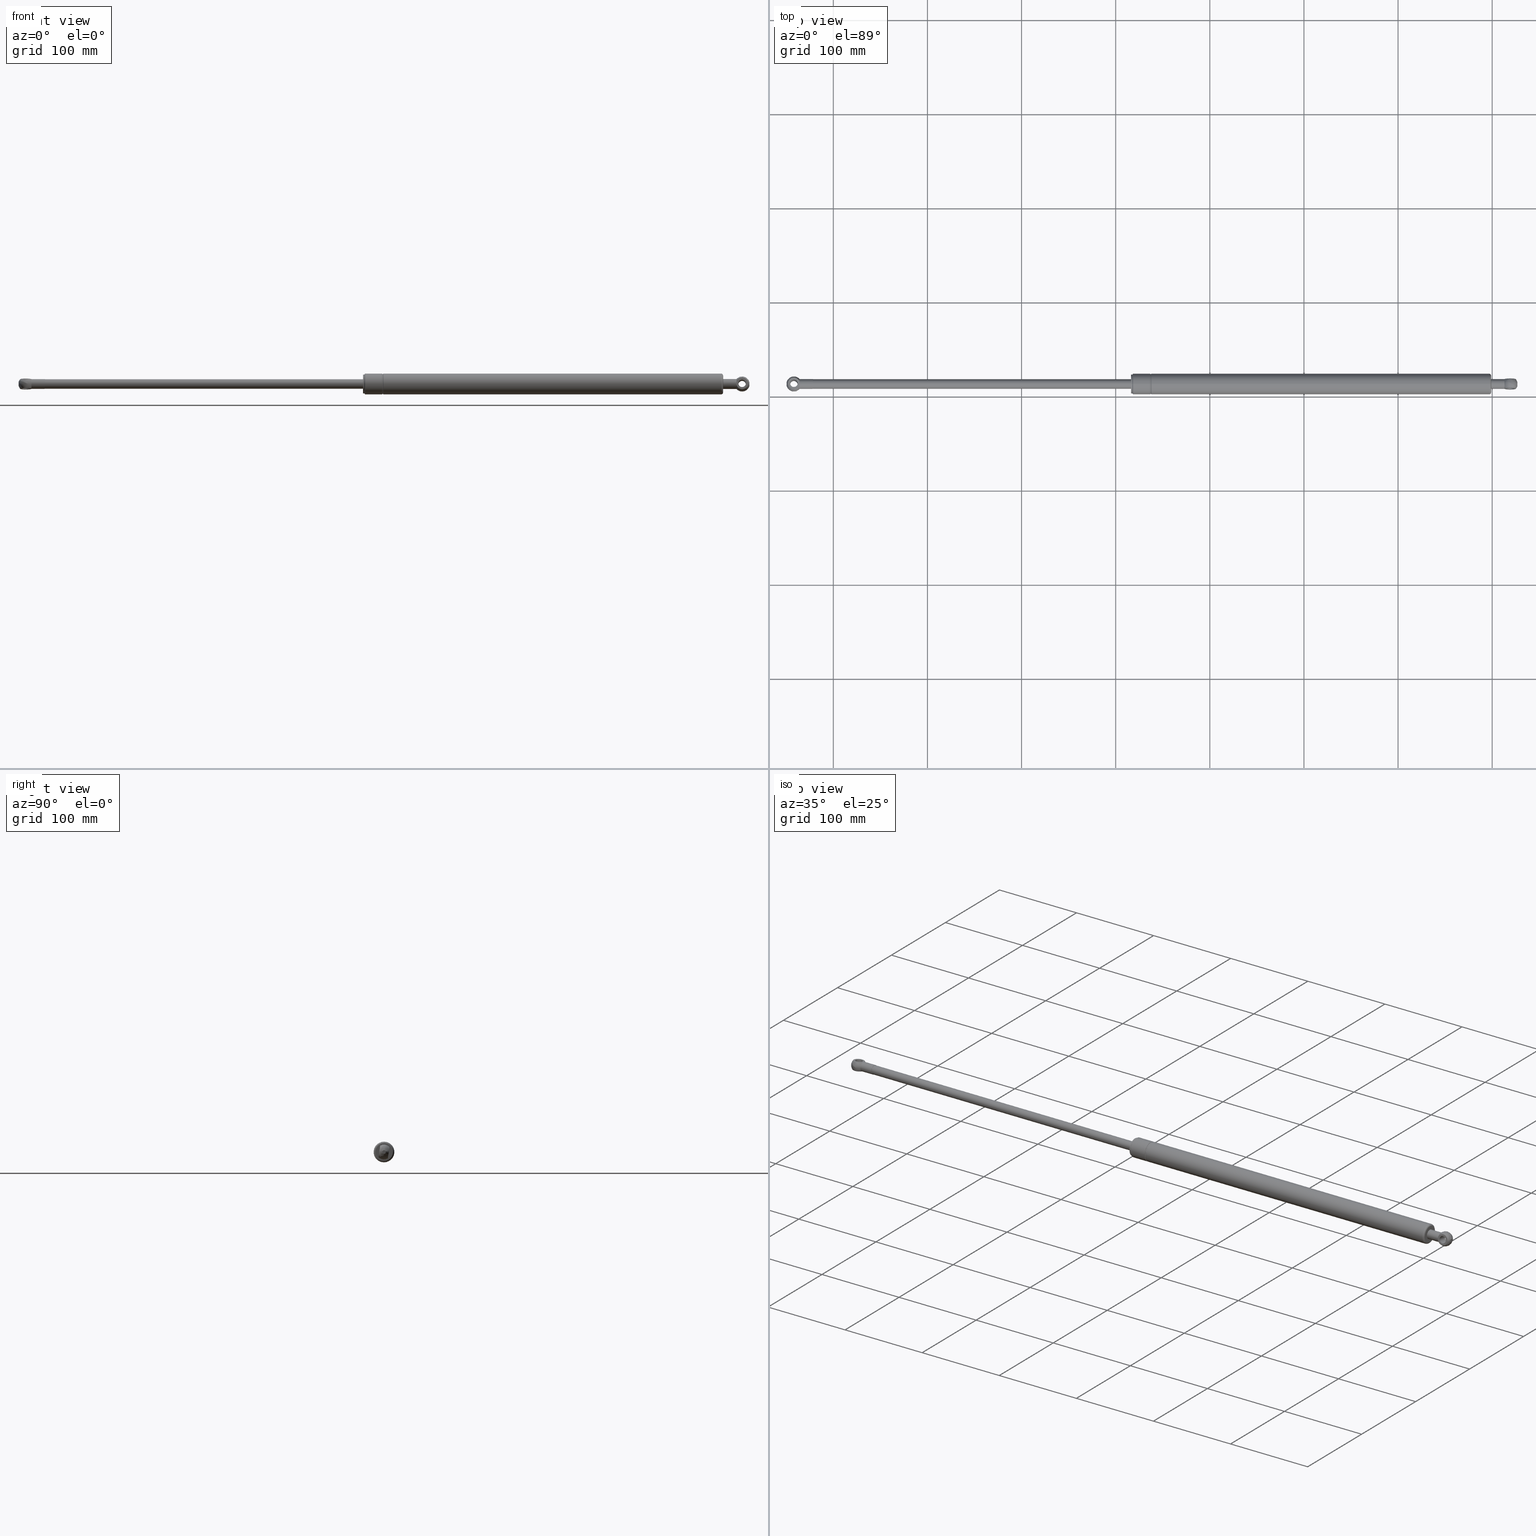
[diagram: canonical four-view strip — front | top / right | iso, engineering-drawing reading convention]
A machine part, canonical four-view strip (front | top / right | iso — engineering-drawing reading convention). The complete STEP part file that produces these views, byte-faithful:
ISO-10303-21;
HEADER;
/* Generated by software containing ST-Developer
 * from STEP Tools, Inc. (www.steptools.com) 
 */

FILE_DESCRIPTION(
/* description */ (''),
/* implementation_level */ '2;1');

FILE_NAME(
/* name */ '\\\\SYNOLOGYNAS\\web\\db2\\SB-761-H\\\X2\B3C4BA74\X0\\\DR_
SB-761-H.stp',
/* time_stamp */ '2023-11-29T15:38:38+09:00',
/* author */ ('user'),
/* organization */ (''),
/* preprocessor_version */ 'ST-DEVELOPER v15.6',
/* originating_system */ 'Autodesk Inventor 2015',
/* authorisation */ '');

FILE_SCHEMA (('AUTOMOTIVE_DESIGN { 1 0 10303 214 3 1 1 }'));
ENDSEC;

DATA;
#10=MECHANICAL_DESIGN_GEOMETRIC_PRESENTATION_REPRESENTATION('',(#42,#43,
#44,#46,#45,#48,#47),#815);
#11=ITEM_DEFINED_TRANSFORMATION($,$,#435,#511);
#12=ITEM_DEFINED_TRANSFORMATION($,$,#459,#512);
#13=ITEM_DEFINED_TRANSFORMATION($,$,#485,#513);
#14=ITEM_DEFINED_TRANSFORMATION($,$,#435,#514);
#15=ITEM_DEFINED_TRANSFORMATION($,$,#497,#515);
#16=(
REPRESENTATION_RELATIONSHIP($,$,#837,#841)
REPRESENTATION_RELATIONSHIP_WITH_TRANSFORMATION(#11)
SHAPE_REPRESENTATION_RELATIONSHIP()
);
#17=(
REPRESENTATION_RELATIONSHIP($,$,#838,#841)
REPRESENTATION_RELATIONSHIP_WITH_TRANSFORMATION(#12)
SHAPE_REPRESENTATION_RELATIONSHIP()
);
#18=(
REPRESENTATION_RELATIONSHIP($,$,#839,#841)
REPRESENTATION_RELATIONSHIP_WITH_TRANSFORMATION(#13)
SHAPE_REPRESENTATION_RELATIONSHIP()
);
#19=(
REPRESENTATION_RELATIONSHIP($,$,#837,#841)
REPRESENTATION_RELATIONSHIP_WITH_TRANSFORMATION(#14)
SHAPE_REPRESENTATION_RELATIONSHIP()
);
#20=(
REPRESENTATION_RELATIONSHIP($,$,#840,#841)
REPRESENTATION_RELATIONSHIP_WITH_TRANSFORMATION(#15)
SHAPE_REPRESENTATION_RELATIONSHIP()
);
#21=CONTEXT_DEPENDENT_SHAPE_REPRESENTATION(#16,#832);
#22=CONTEXT_DEPENDENT_SHAPE_REPRESENTATION(#17,#833);
#23=CONTEXT_DEPENDENT_SHAPE_REPRESENTATION(#18,#834);
#24=CONTEXT_DEPENDENT_SHAPE_REPRESENTATION(#19,#835);
#25=CONTEXT_DEPENDENT_SHAPE_REPRESENTATION(#20,#836);
#26=NEXT_ASSEMBLY_USAGE_OCCURRENCE('DR_SB-761-H HOLE:1',$,$,#847,#843,$);
#27=NEXT_ASSEMBLY_USAGE_OCCURRENCE('DR_SB-761-BASE:1',$,$,#847,#844,$);
#28=NEXT_ASSEMBLY_USAGE_OCCURRENCE('DR_SB-761-SUPPORT:1',$,$,#847,#845,
$);
#29=NEXT_ASSEMBLY_USAGE_OCCURRENCE('DR_SB-761-H HOLE:2',$,$,#847,#843,$);
#30=NEXT_ASSEMBLY_USAGE_OCCURRENCE('DR_SB-761-RING:1',$,$,#847,#846,$);
#31=TOROIDAL_SURFACE('',#466,11.,0.5);
#32=TOROIDAL_SURFACE('',#469,11.,1.);
#33=TOROIDAL_SURFACE('',#474,9.00000000000001,2.);
#34=SHAPE_REPRESENTATION_RELATIONSHIP('SRR','None',#837,#38);
#35=SHAPE_REPRESENTATION_RELATIONSHIP('SRR','None',#838,#39);
#36=SHAPE_REPRESENTATION_RELATIONSHIP('SRR','None',#839,#40);
#37=SHAPE_REPRESENTATION_RELATIONSHIP('SRR','None',#840,#41);
#38=ADVANCED_BREP_SHAPE_REPRESENTATION($,(#49),#810);
#39=ADVANCED_BREP_SHAPE_REPRESENTATION($,(#50),#811);
#40=ADVANCED_BREP_SHAPE_REPRESENTATION($,(#51),#812);
#41=ADVANCED_BREP_SHAPE_REPRESENTATION($,(#52),#813);
#42=STYLED_ITEM('',(#866),#49);
#43=STYLED_ITEM('',(#867),#50);
#44=STYLED_ITEM('',(#868),#422);
#45=STYLED_ITEM('',(#868),#51);
#46=STYLED_ITEM('',(#870),#426);
#47=STYLED_ITEM('',(#867),#427);
#48=STYLED_ITEM('',(#869),#52);
#49=MANIFOLD_SOLID_BREP('\X2\C194B9ACB4DC\X0\1',#431);
#50=MANIFOLD_SOLID_BREP('\X2\C194B9ACB4DC\X0\1',#432);
#51=MANIFOLD_SOLID_BREP('\X2\C194B9ACB4DC\X0\1',#433);
#52=MANIFOLD_SOLID_BREP('\X2\C194B9ACB4DC\X0\1',#434);
#53=SPHERICAL_SURFACE('',#454,8.);
#54=B_SPLINE_CURVE_WITH_KNOTS('',3,(#691,#692,#693,#694,#695,#696),
 .UNSPECIFIED.,.F.,.F.,(4,2,4),(2.41667495412591,2.57738882372164,2.73810269331737),
 .UNSPECIFIED.);
#55=B_SPLINE_CURVE_WITH_KNOTS('',3,(#701,#702,#703,#704,#705,#706),
 .UNSPECIFIED.,.F.,.F.,(4,2,4),(0.698415738311486,0.859129607907215,1.01984347750294),
 .UNSPECIFIED.);
#56=PLANE('',#440);
#57=PLANE('',#453);
#58=PLANE('',#457);
#59=PLANE('',#458);
#60=PLANE('',#465);
#61=PLANE('',#477);
#62=PLANE('',#482);
#63=PLANE('',#484);
#64=PLANE('',#491);
#65=PLANE('',#492);
#66=PLANE('',#496);
#67=PLANE('',#501);
#68=PLANE('',#505);
#69=PLANE('',#509);
#70=FACE_BOUND('',#151,.T.);
#71=FACE_BOUND('',#156,.T.);
#72=FACE_BOUND('',#158,.T.);
#73=FACE_BOUND('',#160,.T.);
#74=FACE_BOUND('',#161,.T.);
#75=FACE_BOUND('',#162,.T.);
#76=FACE_BOUND('',#164,.T.);
#77=FACE_BOUND('',#166,.T.);
#78=FACE_BOUND('',#168,.T.);
#79=FACE_BOUND('',#170,.T.);
#80=FACE_BOUND('',#173,.T.);
#81=FACE_BOUND('',#175,.T.);
#82=FACE_BOUND('',#177,.T.);
#83=FACE_BOUND('',#179,.T.);
#84=FACE_BOUND('',#181,.T.);
#85=FACE_BOUND('',#183,.T.);
#86=FACE_BOUND('',#185,.T.);
#87=FACE_BOUND('',#188,.T.);
#88=FACE_BOUND('',#190,.T.);
#89=FACE_BOUND('',#192,.T.);
#90=FACE_BOUND('',#194,.T.);
#91=FACE_BOUND('',#198,.T.);
#92=FACE_BOUND('',#200,.T.);
#93=FACE_BOUND('',#202,.T.);
#94=FACE_BOUND('',#204,.T.);
#95=FACE_BOUND('',#206,.T.);
#96=FACE_BOUND('',#208,.T.);
#97=FACE_BOUND('',#210,.T.);
#98=FACE_BOUND('',#212,.T.);
#99=CYLINDRICAL_SURFACE('',#438,3.567);
#100=CYLINDRICAL_SURFACE('',#442,6.2449979983984);
#101=CYLINDRICAL_SURFACE('',#444,6.2449979983984);
#102=CYLINDRICAL_SURFACE('',#446,5.25);
#103=CYLINDRICAL_SURFACE('',#450,4.);
#104=CYLINDRICAL_SURFACE('',#463,4.);
#105=CYLINDRICAL_SURFACE('',#472,10.);
#106=CYLINDRICAL_SURFACE('',#478,11.);
#107=CYLINDRICAL_SURFACE('',#479,9.);
#108=CYLINDRICAL_SURFACE('',#483,11.);
#109=CYLINDRICAL_SURFACE('',#489,4.);
#110=CYLINDRICAL_SURFACE('',#494,5.00000000000002);
#111=CYLINDRICAL_SURFACE('',#498,9.);
#112=CYLINDRICAL_SURFACE('',#503,6.5);
#113=CYLINDRICAL_SURFACE('',#507,5.);
#114=FACE_OUTER_BOUND('',#149,.T.);
#115=FACE_OUTER_BOUND('',#150,.T.);
#116=FACE_OUTER_BOUND('',#152,.T.);
#117=FACE_OUTER_BOUND('',#153,.T.);
#118=FACE_OUTER_BOUND('',#154,.T.);
#119=FACE_OUTER_BOUND('',#155,.T.);
#120=FACE_OUTER_BOUND('',#157,.T.);
#121=FACE_OUTER_BOUND('',#159,.T.);
#122=FACE_OUTER_BOUND('',#163,.T.);
#123=FACE_OUTER_BOUND('',#165,.T.);
#124=FACE_OUTER_BOUND('',#167,.T.);
#125=FACE_OUTER_BOUND('',#169,.T.);
#126=FACE_OUTER_BOUND('',#171,.T.);
#127=FACE_OUTER_BOUND('',#172,.T.);
#128=FACE_OUTER_BOUND('',#174,.T.);
#129=FACE_OUTER_BOUND('',#176,.T.);
#130=FACE_OUTER_BOUND('',#178,.T.);
#131=FACE_OUTER_BOUND('',#180,.T.);
#132=FACE_OUTER_BOUND('',#182,.T.);
#133=FACE_OUTER_BOUND('',#184,.T.);
#134=FACE_OUTER_BOUND('',#186,.T.);
#135=FACE_OUTER_BOUND('',#187,.T.);
#136=FACE_OUTER_BOUND('',#189,.T.);
#137=FACE_OUTER_BOUND('',#191,.T.);
#138=FACE_OUTER_BOUND('',#193,.T.);
#139=FACE_OUTER_BOUND('',#195,.T.);
#140=FACE_OUTER_BOUND('',#196,.T.);
#141=FACE_OUTER_BOUND('',#197,.T.);
#142=FACE_OUTER_BOUND('',#199,.T.);
#143=FACE_OUTER_BOUND('',#201,.T.);
#144=FACE_OUTER_BOUND('',#203,.T.);
#145=FACE_OUTER_BOUND('',#205,.T.);
#146=FACE_OUTER_BOUND('',#207,.T.);
#147=FACE_OUTER_BOUND('',#209,.T.);
#148=FACE_OUTER_BOUND('',#211,.T.);
#149=EDGE_LOOP('',(#318));
#150=EDGE_LOOP('',(#319));
#151=EDGE_LOOP('',(#320));
#152=EDGE_LOOP('',(#321));
#153=EDGE_LOOP('',(#322,#323));
#154=EDGE_LOOP('',(#324,#325));
#155=EDGE_LOOP('',(#326,#327,#328,#329));
#156=EDGE_LOOP('',(#330));
#157=EDGE_LOOP('',(#331));
#158=EDGE_LOOP('',(#332));
#159=EDGE_LOOP('',(#333));
#160=EDGE_LOOP('',(#334));
#161=EDGE_LOOP('',(#335));
#162=EDGE_LOOP('',(#336,#337,#338,#339));
#163=EDGE_LOOP('',(#340,#341));
#164=EDGE_LOOP('',(#342));
#165=EDGE_LOOP('',(#343,#344));
#166=EDGE_LOOP('',(#345));
#167=EDGE_LOOP('',(#346));
#168=EDGE_LOOP('',(#347));
#169=EDGE_LOOP('',(#348));
#170=EDGE_LOOP('',(#349));
#171=EDGE_LOOP('',(#350));
#172=EDGE_LOOP('',(#351));
#173=EDGE_LOOP('',(#352));
#174=EDGE_LOOP('',(#353));
#175=EDGE_LOOP('',(#354));
#176=EDGE_LOOP('',(#355));
#177=EDGE_LOOP('',(#356));
#178=EDGE_LOOP('',(#357));
#179=EDGE_LOOP('',(#358));
#180=EDGE_LOOP('',(#359));
#181=EDGE_LOOP('',(#360));
#182=EDGE_LOOP('',(#361));
#183=EDGE_LOOP('',(#362));
#184=EDGE_LOOP('',(#363));
#185=EDGE_LOOP('',(#364));
#186=EDGE_LOOP('',(#365));
#187=EDGE_LOOP('',(#366));
#188=EDGE_LOOP('',(#367));
#189=EDGE_LOOP('',(#368));
#190=EDGE_LOOP('',(#369));
#191=EDGE_LOOP('',(#370));
#192=EDGE_LOOP('',(#371));
#193=EDGE_LOOP('',(#372));
#194=EDGE_LOOP('',(#373));
#195=EDGE_LOOP('',(#374));
#196=EDGE_LOOP('',(#375));
#197=EDGE_LOOP('',(#376));
#198=EDGE_LOOP('',(#377));
#199=EDGE_LOOP('',(#378));
#200=EDGE_LOOP('',(#379));
#201=EDGE_LOOP('',(#380));
#202=EDGE_LOOP('',(#381));
#203=EDGE_LOOP('',(#382));
#204=EDGE_LOOP('',(#383));
#205=EDGE_LOOP('',(#384));
#206=EDGE_LOOP('',(#385));
#207=EDGE_LOOP('',(#386));
#208=EDGE_LOOP('',(#387));
#209=EDGE_LOOP('',(#388));
#210=EDGE_LOOP('',(#389));
#211=EDGE_LOOP('',(#390));
#212=EDGE_LOOP('',(#391));
#213=CIRCLE('',#437,3.567);
#214=CIRCLE('',#439,3.567);
#215=CIRCLE('',#441,1.98431348329845);
#216=CIRCLE('',#443,6.2449979983984);
#217=CIRCLE('',#445,6.2449979983984);
#218=CIRCLE('',#447,5.25);
#219=CIRCLE('',#448,5.25);
#220=CIRCLE('',#449,5.25);
#221=CIRCLE('',#451,4.);
#222=CIRCLE('',#452,4.);
#223=CIRCLE('',#455,6.2449979983984);
#224=CIRCLE('',#456,6.2449979983984);
#225=CIRCLE('',#461,4.);
#226=CIRCLE('',#462,3.);
#227=CIRCLE('',#464,4.);
#228=CIRCLE('',#467,11.);
#229=CIRCLE('',#468,11.);
#230=CIRCLE('',#470,11.);
#231=CIRCLE('',#471,10.);
#232=CIRCLE('',#473,10.);
#233=CIRCLE('',#475,9.00000000000001);
#234=CIRCLE('',#476,11.);
#235=CIRCLE('',#480,9.);
#236=CIRCLE('',#481,9.);
#237=CIRCLE('',#487,4.);
#238=CIRCLE('',#488,3.);
#239=CIRCLE('',#490,4.);
#240=CIRCLE('',#493,5.);
#241=CIRCLE('',#495,5.00000000000003);
#242=CIRCLE('',#499,9.);
#243=CIRCLE('',#500,9.);
#244=CIRCLE('',#502,6.5);
#245=CIRCLE('',#504,6.5);
#246=CIRCLE('',#506,5.);
#247=CIRCLE('',#508,5.);
#248=VERTEX_POINT('',#680);
#249=VERTEX_POINT('',#683);
#250=VERTEX_POINT('',#686);
#251=VERTEX_POINT('',#689);
#252=VERTEX_POINT('',#690);
#253=VERTEX_POINT('',#699);
#254=VERTEX_POINT('',#700);
#255=VERTEX_POINT('',#711);
#256=VERTEX_POINT('',#714);
#257=VERTEX_POINT('',#716);
#258=VERTEX_POINT('',#726);
#259=VERTEX_POINT('',#728);
#260=VERTEX_POINT('',#731);
#261=VERTEX_POINT('',#735);
#262=VERTEX_POINT('',#737);
#263=VERTEX_POINT('',#740);
#264=VERTEX_POINT('',#742);
#265=VERTEX_POINT('',#745);
#266=VERTEX_POINT('',#748);
#267=VERTEX_POINT('',#750);
#268=VERTEX_POINT('',#755);
#269=VERTEX_POINT('',#757);
#270=VERTEX_POINT('',#764);
#271=VERTEX_POINT('',#766);
#272=VERTEX_POINT('',#769);
#273=VERTEX_POINT('',#773);
#274=VERTEX_POINT('',#776);
#275=VERTEX_POINT('',#781);
#276=VERTEX_POINT('',#783);
#277=VERTEX_POINT('',#786);
#278=VERTEX_POINT('',#789);
#279=VERTEX_POINT('',#792);
#280=VERTEX_POINT('',#795);
#281=EDGE_CURVE('',#248,#248,#213,.T.);
#282=EDGE_CURVE('',#249,#249,#214,.T.);
#283=EDGE_CURVE('',#250,#250,#215,.T.);
#284=EDGE_CURVE('',#251,#252,#54,.T.);
#285=EDGE_CURVE('',#251,#252,#216,.T.);
#286=EDGE_CURVE('',#253,#254,#55,.T.);
#287=EDGE_CURVE('',#253,#254,#217,.T.);
#288=EDGE_CURVE('',#253,#252,#218,.T.);
#289=EDGE_CURVE('',#251,#254,#219,.T.);
#290=EDGE_CURVE('',#255,#255,#220,.T.);
#291=EDGE_CURVE('',#256,#256,#221,.T.);
#292=EDGE_CURVE('',#257,#257,#222,.T.);
#293=EDGE_CURVE('',#252,#251,#223,.T.);
#294=EDGE_CURVE('',#254,#253,#224,.T.);
#295=EDGE_CURVE('',#258,#258,#225,.T.);
#296=EDGE_CURVE('',#259,#259,#226,.T.);
#297=EDGE_CURVE('',#260,#260,#227,.T.);
#298=EDGE_CURVE('',#261,#261,#228,.T.);
#299=EDGE_CURVE('',#262,#262,#229,.T.);
#300=EDGE_CURVE('',#263,#263,#230,.T.);
#301=EDGE_CURVE('',#264,#264,#231,.T.);
#302=EDGE_CURVE('',#265,#265,#232,.T.);
#303=EDGE_CURVE('',#266,#266,#233,.T.);
#304=EDGE_CURVE('',#267,#267,#234,.T.);
#305=EDGE_CURVE('',#268,#268,#235,.T.);
#306=EDGE_CURVE('',#269,#269,#236,.T.);
#307=EDGE_CURVE('',#270,#270,#237,.T.);
#308=EDGE_CURVE('',#271,#271,#238,.T.);
#309=EDGE_CURVE('',#272,#272,#239,.T.);
#310=EDGE_CURVE('',#273,#273,#240,.T.);
#311=EDGE_CURVE('',#274,#274,#241,.T.);
#312=EDGE_CURVE('',#275,#275,#242,.T.);
#313=EDGE_CURVE('',#276,#276,#243,.T.);
#314=EDGE_CURVE('',#277,#277,#244,.T.);
#315=EDGE_CURVE('',#278,#278,#245,.T.);
#316=EDGE_CURVE('',#279,#279,#246,.T.);
#317=EDGE_CURVE('',#280,#280,#247,.T.);
#318=ORIENTED_EDGE('',*,*,#281,.T.);
#319=ORIENTED_EDGE('',*,*,#282,.F.);
#320=ORIENTED_EDGE('',*,*,#281,.F.);
#321=ORIENTED_EDGE('',*,*,#283,.F.);
#322=ORIENTED_EDGE('',*,*,#284,.F.);
#323=ORIENTED_EDGE('',*,*,#285,.T.);
#324=ORIENTED_EDGE('',*,*,#286,.F.);
#325=ORIENTED_EDGE('',*,*,#287,.T.);
#326=ORIENTED_EDGE('',*,*,#284,.T.);
#327=ORIENTED_EDGE('',*,*,#288,.F.);
#328=ORIENTED_EDGE('',*,*,#286,.T.);
#329=ORIENTED_EDGE('',*,*,#289,.F.);
#330=ORIENTED_EDGE('',*,*,#290,.F.);
#331=ORIENTED_EDGE('',*,*,#291,.F.);
#332=ORIENTED_EDGE('',*,*,#292,.F.);
#333=ORIENTED_EDGE('',*,*,#290,.T.);
#334=ORIENTED_EDGE('',*,*,#282,.T.);
#335=ORIENTED_EDGE('',*,*,#283,.T.);
#336=ORIENTED_EDGE('',*,*,#288,.T.);
#337=ORIENTED_EDGE('',*,*,#293,.T.);
#338=ORIENTED_EDGE('',*,*,#289,.T.);
#339=ORIENTED_EDGE('',*,*,#294,.T.);
#340=ORIENTED_EDGE('',*,*,#293,.F.);
#341=ORIENTED_EDGE('',*,*,#285,.F.);
#342=ORIENTED_EDGE('',*,*,#291,.T.);
#343=ORIENTED_EDGE('',*,*,#294,.F.);
#344=ORIENTED_EDGE('',*,*,#287,.F.);
#345=ORIENTED_EDGE('',*,*,#292,.T.);
#346=ORIENTED_EDGE('',*,*,#295,.T.);
#347=ORIENTED_EDGE('',*,*,#296,.T.);
#348=ORIENTED_EDGE('',*,*,#297,.F.);
#349=ORIENTED_EDGE('',*,*,#295,.F.);
#350=ORIENTED_EDGE('',*,*,#296,.F.);
#351=ORIENTED_EDGE('',*,*,#298,.T.);
#352=ORIENTED_EDGE('',*,*,#299,.F.);
#353=ORIENTED_EDGE('',*,*,#300,.T.);
#354=ORIENTED_EDGE('',*,*,#301,.T.);
#355=ORIENTED_EDGE('',*,*,#302,.F.);
#356=ORIENTED_EDGE('',*,*,#301,.F.);
#357=ORIENTED_EDGE('',*,*,#303,.T.);
#358=ORIENTED_EDGE('',*,*,#304,.T.);
#359=ORIENTED_EDGE('',*,*,#303,.F.);
#360=ORIENTED_EDGE('',*,*,#297,.T.);
#361=ORIENTED_EDGE('',*,*,#298,.F.);
#362=ORIENTED_EDGE('',*,*,#304,.F.);
#363=ORIENTED_EDGE('',*,*,#305,.F.);
#364=ORIENTED_EDGE('',*,*,#306,.F.);
#365=ORIENTED_EDGE('',*,*,#306,.T.);
#366=ORIENTED_EDGE('',*,*,#300,.F.);
#367=ORIENTED_EDGE('',*,*,#299,.T.);
#368=ORIENTED_EDGE('',*,*,#302,.T.);
#369=ORIENTED_EDGE('',*,*,#305,.T.);
#370=ORIENTED_EDGE('',*,*,#307,.T.);
#371=ORIENTED_EDGE('',*,*,#308,.T.);
#372=ORIENTED_EDGE('',*,*,#309,.F.);
#373=ORIENTED_EDGE('',*,*,#307,.F.);
#374=ORIENTED_EDGE('',*,*,#308,.F.);
#375=ORIENTED_EDGE('',*,*,#310,.F.);
#376=ORIENTED_EDGE('',*,*,#311,.F.);
#377=ORIENTED_EDGE('',*,*,#310,.T.);
#378=ORIENTED_EDGE('',*,*,#311,.T.);
#379=ORIENTED_EDGE('',*,*,#309,.T.);
#380=ORIENTED_EDGE('',*,*,#312,.F.);
#381=ORIENTED_EDGE('',*,*,#313,.T.);
#382=ORIENTED_EDGE('',*,*,#312,.T.);
#383=ORIENTED_EDGE('',*,*,#314,.F.);
#384=ORIENTED_EDGE('',*,*,#315,.F.);
#385=ORIENTED_EDGE('',*,*,#314,.T.);
#386=ORIENTED_EDGE('',*,*,#315,.T.);
#387=ORIENTED_EDGE('',*,*,#316,.F.);
#388=ORIENTED_EDGE('',*,*,#317,.F.);
#389=ORIENTED_EDGE('',*,*,#316,.T.);
#390=ORIENTED_EDGE('',*,*,#313,.F.);
#391=ORIENTED_EDGE('',*,*,#317,.T.);
#392=CONICAL_SURFACE('',#436,1.7835,59.);
#393=CONICAL_SURFACE('',#460,3.5,44.9999999999996);
#394=CONICAL_SURFACE('',#486,3.5,45.);
#395=ADVANCED_FACE('',(#114),#392,.F.);
#396=ADVANCED_FACE('',(#115,#70),#99,.F.);
#397=ADVANCED_FACE('',(#116),#56,.F.);
#398=ADVANCED_FACE('',(#117),#100,.F.);
#399=ADVANCED_FACE('',(#118),#101,.F.);
#400=ADVANCED_FACE('',(#119,#71),#102,.T.);
#401=ADVANCED_FACE('',(#120,#72),#103,.F.);
#402=ADVANCED_FACE('',(#121,#73),#57,.F.);
#403=ADVANCED_FACE('',(#74,#75),#53,.T.);
#404=ADVANCED_FACE('',(#122,#76),#58,.F.);
#405=ADVANCED_FACE('',(#123,#77),#59,.F.);
#406=ADVANCED_FACE('',(#124,#78),#393,.T.);
#407=ADVANCED_FACE('',(#125,#79),#104,.T.);
#408=ADVANCED_FACE('',(#126),#60,.T.);
#409=ADVANCED_FACE('',(#127,#80),#31,.F.);
#410=ADVANCED_FACE('',(#128,#81),#32,.F.);
#411=ADVANCED_FACE('',(#129,#82),#105,.T.);
#412=ADVANCED_FACE('',(#130,#83),#33,.T.);
#413=ADVANCED_FACE('',(#131,#84),#61,.T.);
#414=ADVANCED_FACE('',(#132,#85),#106,.T.);
#415=ADVANCED_FACE('',(#133,#86),#107,.F.);
#416=ADVANCED_FACE('',(#134),#62,.T.);
#417=ADVANCED_FACE('',(#135,#87),#108,.T.);
#418=ADVANCED_FACE('',(#136,#88),#63,.T.);
#419=ADVANCED_FACE('',(#137,#89),#394,.T.);
#420=ADVANCED_FACE('',(#138,#90),#109,.T.);
#421=ADVANCED_FACE('',(#139),#64,.F.);
#422=ADVANCED_FACE('',(#140),#65,.T.);
#423=ADVANCED_FACE('',(#141,#91),#110,.T.);
#424=ADVANCED_FACE('',(#142,#92),#66,.T.);
#425=ADVANCED_FACE('',(#143,#93),#111,.T.);
#426=ADVANCED_FACE('',(#144,#94),#67,.T.);
#427=ADVANCED_FACE('',(#145,#95),#112,.F.);
#428=ADVANCED_FACE('',(#146,#96),#68,.T.);
#429=ADVANCED_FACE('',(#147,#97),#113,.F.);
#430=ADVANCED_FACE('',(#148,#98),#69,.T.);
#431=CLOSED_SHELL('',(#395,#396,#397,#398,#399,#400,#401,#402,#403,#404,
#405));
#432=CLOSED_SHELL('',(#406,#407,#408,#409,#410,#411,#412,#413,#414,#415,
#416,#417,#418));
#433=CLOSED_SHELL('',(#419,#420,#421,#422,#423,#424));
#434=CLOSED_SHELL('',(#425,#426,#427,#428,#429,#430));
#435=AXIS2_PLACEMENT_3D('placement',#678,#516,#517);
#436=AXIS2_PLACEMENT_3D('',#679,#518,#519);
#437=AXIS2_PLACEMENT_3D('',#681,#520,#521);
#438=AXIS2_PLACEMENT_3D('',#682,#522,#523);
#439=AXIS2_PLACEMENT_3D('',#684,#524,#525);
#440=AXIS2_PLACEMENT_3D('',#685,#526,#527);
#441=AXIS2_PLACEMENT_3D('',#687,#528,#529);
#442=AXIS2_PLACEMENT_3D('',#688,#530,#531);
#443=AXIS2_PLACEMENT_3D('',#697,#532,#533);
#444=AXIS2_PLACEMENT_3D('',#698,#534,#535);
#445=AXIS2_PLACEMENT_3D('',#707,#536,#537);
#446=AXIS2_PLACEMENT_3D('',#708,#538,#539);
#447=AXIS2_PLACEMENT_3D('',#709,#540,#541);
#448=AXIS2_PLACEMENT_3D('',#710,#542,#543);
#449=AXIS2_PLACEMENT_3D('',#712,#544,#545);
#450=AXIS2_PLACEMENT_3D('',#713,#546,#547);
#451=AXIS2_PLACEMENT_3D('',#715,#548,#549);
#452=AXIS2_PLACEMENT_3D('',#717,#550,#551);
#453=AXIS2_PLACEMENT_3D('',#718,#552,#553);
#454=AXIS2_PLACEMENT_3D('',#719,#554,#555);
#455=AXIS2_PLACEMENT_3D('',#720,#556,#557);
#456=AXIS2_PLACEMENT_3D('',#721,#558,#559);
#457=AXIS2_PLACEMENT_3D('',#722,#560,#561);
#458=AXIS2_PLACEMENT_3D('',#723,#562,#563);
#459=AXIS2_PLACEMENT_3D('placement',#724,#564,#565);
#460=AXIS2_PLACEMENT_3D('',#725,#566,#567);
#461=AXIS2_PLACEMENT_3D('',#727,#568,#569);
#462=AXIS2_PLACEMENT_3D('',#729,#570,#571);
#463=AXIS2_PLACEMENT_3D('',#730,#572,#573);
#464=AXIS2_PLACEMENT_3D('',#732,#574,#575);
#465=AXIS2_PLACEMENT_3D('',#733,#576,#577);
#466=AXIS2_PLACEMENT_3D('',#734,#578,#579);
#467=AXIS2_PLACEMENT_3D('',#736,#580,#581);
#468=AXIS2_PLACEMENT_3D('',#738,#582,#583);
#469=AXIS2_PLACEMENT_3D('',#739,#584,#585);
#470=AXIS2_PLACEMENT_3D('',#741,#586,#587);
#471=AXIS2_PLACEMENT_3D('',#743,#588,#589);
#472=AXIS2_PLACEMENT_3D('',#744,#590,#591);
#473=AXIS2_PLACEMENT_3D('',#746,#592,#593);
#474=AXIS2_PLACEMENT_3D('',#747,#594,#595);
#475=AXIS2_PLACEMENT_3D('',#749,#596,#597);
#476=AXIS2_PLACEMENT_3D('',#751,#598,#599);
#477=AXIS2_PLACEMENT_3D('',#752,#600,#601);
#478=AXIS2_PLACEMENT_3D('',#753,#602,#603);
#479=AXIS2_PLACEMENT_3D('',#754,#604,#605);
#480=AXIS2_PLACEMENT_3D('',#756,#606,#607);
#481=AXIS2_PLACEMENT_3D('',#758,#608,#609);
#482=AXIS2_PLACEMENT_3D('',#759,#610,#611);
#483=AXIS2_PLACEMENT_3D('',#760,#612,#613);
#484=AXIS2_PLACEMENT_3D('',#761,#614,#615);
#485=AXIS2_PLACEMENT_3D('placement',#762,#616,#617);
#486=AXIS2_PLACEMENT_3D('',#763,#618,#619);
#487=AXIS2_PLACEMENT_3D('',#765,#620,#621);
#488=AXIS2_PLACEMENT_3D('',#767,#622,#623);
#489=AXIS2_PLACEMENT_3D('',#768,#624,#625);
#490=AXIS2_PLACEMENT_3D('',#770,#626,#627);
#491=AXIS2_PLACEMENT_3D('',#771,#628,#629);
#492=AXIS2_PLACEMENT_3D('',#772,#630,#631);
#493=AXIS2_PLACEMENT_3D('',#774,#632,#633);
#494=AXIS2_PLACEMENT_3D('',#775,#634,#635);
#495=AXIS2_PLACEMENT_3D('',#777,#636,#637);
#496=AXIS2_PLACEMENT_3D('',#778,#638,#639);
#497=AXIS2_PLACEMENT_3D('placement',#779,#640,#641);
#498=AXIS2_PLACEMENT_3D('',#780,#642,#643);
#499=AXIS2_PLACEMENT_3D('',#782,#644,#645);
#500=AXIS2_PLACEMENT_3D('',#784,#646,#647);
#501=AXIS2_PLACEMENT_3D('',#785,#648,#649);
#502=AXIS2_PLACEMENT_3D('',#787,#650,#651);
#503=AXIS2_PLACEMENT_3D('',#788,#652,#653);
#504=AXIS2_PLACEMENT_3D('',#790,#654,#655);
#505=AXIS2_PLACEMENT_3D('',#791,#656,#657);
#506=AXIS2_PLACEMENT_3D('',#793,#658,#659);
#507=AXIS2_PLACEMENT_3D('',#794,#660,#661);
#508=AXIS2_PLACEMENT_3D('',#796,#662,#663);
#509=AXIS2_PLACEMENT_3D('',#797,#664,#665);
#510=AXIS2_PLACEMENT_3D('placement',#798,#666,#667);
#511=AXIS2_PLACEMENT_3D('',#799,#668,#669);
#512=AXIS2_PLACEMENT_3D('',#800,#670,#671);
#513=AXIS2_PLACEMENT_3D('',#801,#672,#673);
#514=AXIS2_PLACEMENT_3D('',#802,#674,#675);
#515=AXIS2_PLACEMENT_3D('',#803,#676,#677);
#516=DIRECTION('axis',(0.,0.,1.));
#517=DIRECTION('refdir',(1.,0.,0.));
#518=DIRECTION('center_axis',(0.,-1.,0.));
#519=DIRECTION('ref_axis',(1.,0.,0.));
#520=DIRECTION('center_axis',(0.,-1.,0.));
#521=DIRECTION('ref_axis',(1.,0.,0.));
#522=DIRECTION('center_axis',(0.,-1.,0.));
#523=DIRECTION('ref_axis',(1.,0.,0.));
#524=DIRECTION('center_axis',(0.,1.,0.));
#525=DIRECTION('ref_axis',(1.,0.,0.));
#526=DIRECTION('center_axis',(0.,-1.,0.));
#527=DIRECTION('ref_axis',(0.,0.,-1.));
#528=DIRECTION('center_axis',(0.,-1.,0.));
#529=DIRECTION('ref_axis',(0.,0.,1.));
#530=DIRECTION('center_axis',(1.,0.,0.));
#531=DIRECTION('ref_axis',(0.,0.966589298406967,-0.256330115681182));
#532=DIRECTION('center_axis',(-1.,0.,0.));
#533=DIRECTION('ref_axis',(0.,0.,-1.));
#534=DIRECTION('center_axis',(1.,0.,0.));
#535=DIRECTION('ref_axis',(0.,0.966589298406967,-0.256330115681182));
#536=DIRECTION('center_axis',(1.,0.,0.));
#537=DIRECTION('ref_axis',(0.,0.,1.));
#538=DIRECTION('center_axis',(0.,1.,0.));
#539=DIRECTION('ref_axis',(1.,0.,0.));
#540=DIRECTION('center_axis',(0.,1.,0.));
#541=DIRECTION('ref_axis',(1.,-2.11471052309554E-16,0.));
#542=DIRECTION('center_axis',(0.,1.,0.));
#543=DIRECTION('ref_axis',(1.,-2.11471052309554E-16,0.));
#544=DIRECTION('center_axis',(0.,-1.,0.));
#545=DIRECTION('ref_axis',(1.,0.,0.));
#546=DIRECTION('center_axis',(-1.,0.,0.));
#547=DIRECTION('ref_axis',(0.,-1.,0.));
#548=DIRECTION('center_axis',(-1.,0.,0.));
#549=DIRECTION('ref_axis',(0.,-1.,0.));
#550=DIRECTION('center_axis',(1.,0.,0.));
#551=DIRECTION('ref_axis',(0.,-1.,0.));
#552=DIRECTION('center_axis',(0.,1.,0.));
#553=DIRECTION('ref_axis',(0.,0.,1.));
#554=DIRECTION('center_axis',(6.12323399573677E-17,0.,1.));
#555=DIRECTION('ref_axis',(1.,0.,0.));
#556=DIRECTION('center_axis',(-1.,0.,0.));
#557=DIRECTION('ref_axis',(0.,0.,-1.));
#558=DIRECTION('center_axis',(1.,0.,0.));
#559=DIRECTION('ref_axis',(0.,0.,1.));
#560=DIRECTION('center_axis',(-1.,0.,0.));
#561=DIRECTION('ref_axis',(0.,0.,1.));
#562=DIRECTION('center_axis',(1.,0.,0.));
#563=DIRECTION('ref_axis',(0.,0.,-1.));
#564=DIRECTION('axis',(0.,0.,1.));
#565=DIRECTION('refdir',(1.,0.,0.));
#566=DIRECTION('center_axis',(-1.,0.,0.));
#567=DIRECTION('ref_axis',(0.,-1.,0.));
#568=DIRECTION('center_axis',(1.,0.,0.));
#569=DIRECTION('ref_axis',(0.,-1.,0.));
#570=DIRECTION('center_axis',(-1.,0.,0.));
#571=DIRECTION('ref_axis',(0.,-1.,0.));
#572=DIRECTION('center_axis',(1.,0.,0.));
#573=DIRECTION('ref_axis',(0.,1.,0.));
#574=DIRECTION('center_axis',(-1.,0.,1.21906841919625E-16));
#575=DIRECTION('ref_axis',(0.,1.,0.));
#576=DIRECTION('center_axis',(1.,0.,0.));
#577=DIRECTION('ref_axis',(0.,0.,-1.));
#578=DIRECTION('center_axis',(-1.,0.,1.21906841919625E-16));
#579=DIRECTION('ref_axis',(0.,0.,1.));
#580=DIRECTION('center_axis',(-1.,0.,1.21906841919625E-16));
#581=DIRECTION('ref_axis',(1.21906841919625E-16,0.,1.));
#582=DIRECTION('center_axis',(-1.,0.,1.21906841919625E-16));
#583=DIRECTION('ref_axis',(1.21906841919625E-16,0.,1.));
#584=DIRECTION('center_axis',(-1.,0.,1.21906841919625E-16));
#585=DIRECTION('ref_axis',(1.29526019539602E-16,0.,1.));
#586=DIRECTION('center_axis',(-1.,0.,1.21906841919625E-16));
#587=DIRECTION('ref_axis',(1.21906841919625E-16,0.,1.));
#588=DIRECTION('center_axis',(1.,0.,-1.21906841919625E-16));
#589=DIRECTION('ref_axis',(-1.2490009027033E-16,1.22464679914735E-16,-1.));
#590=DIRECTION('center_axis',(-1.,0.,1.21906841919625E-16));
#591=DIRECTION('ref_axis',(1.21906841919625E-16,0.,1.));
#592=DIRECTION('center_axis',(-1.,0.,1.21906841919625E-16));
#593=DIRECTION('ref_axis',(1.21906841919625E-16,0.,1.));
#594=DIRECTION('center_axis',(-1.,0.,1.21906841919625E-16));
#595=DIRECTION('ref_axis',(0.,0.,1.));
#596=DIRECTION('center_axis',(-1.,0.,1.21906841919625E-16));
#597=DIRECTION('ref_axis',(-1.21906841919625E-16,1.22464679914735E-16,-1.));
#598=DIRECTION('center_axis',(1.,0.,-1.21906841919625E-16));
#599=DIRECTION('ref_axis',(-1.26161707343768E-16,1.22464679914735E-16,-1.));
#600=DIRECTION('center_axis',(1.,0.,-1.21906841919625E-16));
#601=DIRECTION('ref_axis',(0.,0.,-1.));
#602=DIRECTION('center_axis',(-1.,0.,1.21906841919625E-16));
#603=DIRECTION('ref_axis',(1.21906841919625E-16,0.,1.));
#604=DIRECTION('center_axis',(-1.,0.,1.21906841919625E-16));
#605=DIRECTION('ref_axis',(0.,-1.,0.));
#606=DIRECTION('center_axis',(1.,0.,-1.21906841919625E-16));
#607=DIRECTION('ref_axis',(0.,-1.,0.));
#608=DIRECTION('center_axis',(-1.,0.,1.21906841919625E-16));
#609=DIRECTION('ref_axis',(0.,-1.,0.));
#610=DIRECTION('center_axis',(-1.,0.,1.21906841919625E-16));
#611=DIRECTION('ref_axis',(0.,-1.,0.));
#612=DIRECTION('center_axis',(-1.,0.,1.21906841919625E-16));
#613=DIRECTION('ref_axis',(1.21906841919625E-16,0.,1.));
#614=DIRECTION('center_axis',(-1.,0.,1.21906841919625E-16));
#615=DIRECTION('ref_axis',(1.21906841919625E-16,0.,1.));
#616=DIRECTION('axis',(0.,0.,1.));
#617=DIRECTION('refdir',(1.,0.,0.));
#618=DIRECTION('center_axis',(1.,0.,0.));
#619=DIRECTION('ref_axis',(0.,0.,-1.));
#620=DIRECTION('center_axis',(-1.,0.,0.));
#621=DIRECTION('ref_axis',(0.,0.,-1.));
#622=DIRECTION('center_axis',(1.,0.,0.));
#623=DIRECTION('ref_axis',(0.,0.,-1.));
#624=DIRECTION('center_axis',(-1.,0.,0.));
#625=DIRECTION('ref_axis',(0.,0.,1.));
#626=DIRECTION('center_axis',(1.,0.,0.));
#627=DIRECTION('ref_axis',(0.,0.,1.));
#628=DIRECTION('center_axis',(1.,0.,0.));
#629=DIRECTION('ref_axis',(0.,0.,-1.));
#630=DIRECTION('center_axis',(1.,0.,0.));
#631=DIRECTION('ref_axis',(0.,0.,-1.));
#632=DIRECTION('center_axis',(-1.,0.,0.));
#633=DIRECTION('ref_axis',(0.,0.,1.));
#634=DIRECTION('center_axis',(-1.,0.,0.));
#635=DIRECTION('ref_axis',(0.,0.,1.));
#636=DIRECTION('center_axis',(-1.,0.,0.));
#637=DIRECTION('ref_axis',(0.,0.,1.));
#638=DIRECTION('center_axis',(-1.,0.,0.));
#639=DIRECTION('ref_axis',(0.,0.,1.));
#640=DIRECTION('axis',(0.,0.,1.));
#641=DIRECTION('refdir',(1.,0.,0.));
#642=DIRECTION('center_axis',(-1.,0.,4.93038065763132E-32));
#643=DIRECTION('ref_axis',(0.,0.,1.));
#644=DIRECTION('center_axis',(-1.,0.,4.93038065763132E-32));
#645=DIRECTION('ref_axis',(0.,0.,1.));
#646=DIRECTION('center_axis',(-1.,0.,4.93038065763132E-32));
#647=DIRECTION('ref_axis',(0.,0.,1.));
#648=DIRECTION('center_axis',(-1.,0.,4.93038065763132E-32));
#649=DIRECTION('ref_axis',(4.93038065763132E-32,0.,1.));
#650=DIRECTION('center_axis',(-1.,0.,4.93038065763132E-32));
#651=DIRECTION('ref_axis',(0.,0.,1.));
#652=DIRECTION('center_axis',(-1.,0.,4.93038065763132E-32));
#653=DIRECTION('ref_axis',(0.,0.,1.));
#654=DIRECTION('center_axis',(-1.,0.,4.93038065763132E-32));
#655=DIRECTION('ref_axis',(0.,0.,1.));
#656=DIRECTION('center_axis',(-1.,0.,4.93038065763132E-32));
#657=DIRECTION('ref_axis',(0.,0.,1.));
#658=DIRECTION('center_axis',(-1.,0.,4.93038065763132E-32));
#659=DIRECTION('ref_axis',(0.,0.,1.));
#660=DIRECTION('center_axis',(-1.,0.,4.93038065763132E-32));
#661=DIRECTION('ref_axis',(0.,0.,1.));
#662=DIRECTION('center_axis',(-1.,0.,4.93038065763132E-32));
#663=DIRECTION('ref_axis',(0.,0.,1.));
#664=DIRECTION('center_axis',(1.,0.,-4.93038065763132E-32));
#665=DIRECTION('ref_axis',(0.,0.,-1.));
#666=DIRECTION('axis',(0.,0.,1.));
#667=DIRECTION('refdir',(1.,0.,0.));
#668=DIRECTION('',(-4.26304052789027E-16,-0.989517308900157,0.144414318497135));
#669=DIRECTION('',(4.28522630748403E-16,0.144414318497135,0.989517308900157));
#670=DIRECTION('',(-1.90352848281769E-15,-5.65519853168436E-16,1.));
#671=DIRECTION('',(1.,2.28983498828938E-16,1.90352848281769E-15));
#672=DIRECTION('',(-3.20536075366133E-16,0.981353195402986,-0.192213178196366));
#673=DIRECTION('',(1.,6.21465182765408E-16,1.50531181205905E-15));
#674=DIRECTION('',(-1.06226707646996E-15,0.144414318497135,0.989517308900157));
#675=DIRECTION('',(-1.32411665160322E-16,-0.989517308900157,0.144414318497135));
#676=DIRECTION('',(-1.9928341830273E-15,-5.10008701937177E-16,1.));
#677=DIRECTION('',(1.,9.02056207507932E-17,1.9928341830273E-15));
#678=CARTESIAN_POINT('',(0.,0.,0.));
#679=CARTESIAN_POINT('Origin',(0.,-5.17836508596435,0.));
#680=CARTESIAN_POINT('',(3.567,-6.25,0.));
#681=CARTESIAN_POINT('Origin',(0.,-6.25,0.));
#682=CARTESIAN_POINT('Origin',(0.,-13.25,0.));
#683=CARTESIAN_POINT('',(3.567,-20.25,0.));
#684=CARTESIAN_POINT('Origin',(0.,-20.25,0.));
#685=CARTESIAN_POINT('Origin',(0.,7.75,0.));
#686=CARTESIAN_POINT('',(2.43008315582638E-16,7.75,-1.98431348329845));
#687=CARTESIAN_POINT('Origin',(0.,7.75,0.));
#688=CARTESIAN_POINT('Origin',(8.5,0.,0.));
#689=CARTESIAN_POINT('',(5.,-6.03634823382482,-1.60078105935821));
#690=CARTESIAN_POINT('',(5.,-6.03634823382482,1.60078105935821));
#691=CARTESIAN_POINT('Ctrl Pts',(5.,-6.03634823382482,-1.60078105935821));
#692=CARTESIAN_POINT('Ctrl Pts',(5.16503701177522,-6.17305092672981,-1.08529203976239));
#693=CARTESIAN_POINT('Ctrl Pts',(5.25,-6.2449979983984,-0.53571289865243));
#694=CARTESIAN_POINT('Ctrl Pts',(5.25,-6.2449979983984,0.535712898652428));
#695=CARTESIAN_POINT('Ctrl Pts',(5.16503701177522,-6.17305092672981,1.08529203976239));
#696=CARTESIAN_POINT('Ctrl Pts',(5.,-6.03634823382482,1.60078105935821));
#697=CARTESIAN_POINT('Origin',(5.,0.,0.));
#698=CARTESIAN_POINT('Origin',(-8.5,0.,0.));
#699=CARTESIAN_POINT('',(-5.,-6.03634823382482,1.60078105935821));
#700=CARTESIAN_POINT('',(-5.,-6.03634823382482,-1.60078105935821));
#701=CARTESIAN_POINT('Ctrl Pts',(-5.,-6.03634823382482,1.60078105935821));
#702=CARTESIAN_POINT('Ctrl Pts',(-5.16503701177522,-6.17305092672981,1.08529203976239));
#703=CARTESIAN_POINT('Ctrl Pts',(-5.25,-6.2449979983984,0.53571289865243));
#704=CARTESIAN_POINT('Ctrl Pts',(-5.25,-6.2449979983984,-0.535712898652428));
#705=CARTESIAN_POINT('Ctrl Pts',(-5.16503701177522,-6.17305092672981,-1.08529203976239));
#706=CARTESIAN_POINT('Ctrl Pts',(-5.,-6.03634823382482,-1.60078105935821));
#707=CARTESIAN_POINT('Origin',(-5.,0.,0.));
#708=CARTESIAN_POINT('Origin',(0.,-20.25,0.));
#709=CARTESIAN_POINT('Origin',(0.,-6.03634823382482,0.));
#710=CARTESIAN_POINT('Origin',(0.,-6.03634823382482,0.));
#711=CARTESIAN_POINT('',(-5.25,-20.25,6.42939569552361E-16));
#712=CARTESIAN_POINT('Origin',(0.,-20.25,0.));
#713=CARTESIAN_POINT('Origin',(29.1220236797292,7.80625564189563E-16,-4.30211422042248E-15));
#714=CARTESIAN_POINT('',(5.,4.,-4.79197294008142E-15));
#715=CARTESIAN_POINT('Origin',(5.,7.80625564189563E-16,-4.30211422042248E-15));
#716=CARTESIAN_POINT('',(-5.,2.90766844530622E-16,4.));
#717=CARTESIAN_POINT('Origin',(-5.,7.80625564189563E-16,-4.30211422042248E-15));
#718=CARTESIAN_POINT('Origin',(2.29804174387325E-16,-20.25,8.8112938462314E-17));
#719=CARTESIAN_POINT('Origin',(0.,0.,0.));
#720=CARTESIAN_POINT('Origin',(5.,0.,0.));
#721=CARTESIAN_POINT('Origin',(-5.,0.,0.));
#722=CARTESIAN_POINT('Origin',(5.,0.,0.));
#723=CARTESIAN_POINT('Origin',(-5.,0.,0.));
#724=CARTESIAN_POINT('',(0.,0.,0.));
#725=CARTESIAN_POINT('Origin',(389.,0.,0.));
#726=CARTESIAN_POINT('',(388.5,4.,4.89858719658941E-16));
#727=CARTESIAN_POINT('Origin',(388.5,0.,0.));
#728=CARTESIAN_POINT('',(389.5,3.,-3.67394039744206E-16));
#729=CARTESIAN_POINT('Origin',(389.5,0.,0.));
#730=CARTESIAN_POINT('Origin',(386.,0.,0.));
#731=CARTESIAN_POINT('',(382.5,4.,0.));
#732=CARTESIAN_POINT('Origin',(382.5,0.,0.));
#733=CARTESIAN_POINT('Origin',(389.5,0.,0.));
#734=CARTESIAN_POINT('Origin',(21.,0.,-2.56004368031213E-15));
#735=CARTESIAN_POINT('',(21.5,0.,11.));
#736=CARTESIAN_POINT('Origin',(21.5,0.,-2.62099710127194E-15));
#737=CARTESIAN_POINT('',(20.5,0.,11.));
#738=CARTESIAN_POINT('Origin',(20.5,0.,-2.49909025935231E-15));
#739=CARTESIAN_POINT('Origin',(0.999999999999999,0.,-1.21906841919625E-16));
#740=CARTESIAN_POINT('',(2.,0.,11.));
#741=CARTESIAN_POINT('Origin',(2.,0.,-2.4381368383925E-16));
#742=CARTESIAN_POINT('',(1.,-2.44929359829471E-15,10.));
#743=CARTESIAN_POINT('Origin',(0.999999999999999,0.,-1.21906841919625E-16));
#744=CARTESIAN_POINT('Origin',(0.999999999999999,0.,-1.21906841919625E-16));
#745=CARTESIAN_POINT('',(0.,0.,10.));
#746=CARTESIAN_POINT('Origin',(-1.21906841919625E-15,0.,1.48612781068164E-31));
#747=CARTESIAN_POINT('Origin',(380.5,0.,-4.63855533504173E-14));
#748=CARTESIAN_POINT('',(382.5,0.,8.99999999999996));
#749=CARTESIAN_POINT('Origin',(382.5,0.,-4.66293670342566E-14));
#750=CARTESIAN_POINT('',(380.5,-2.69422295812418E-15,11.));
#751=CARTESIAN_POINT('Origin',(380.5,0.,-4.63855533504173E-14));
#752=CARTESIAN_POINT('Origin',(382.5,0.,5.49999999999995));
#753=CARTESIAN_POINT('Origin',(202.,0.,-2.46251820677643E-14));
#754=CARTESIAN_POINT('Origin',(187.5,0.,-2.28575328599297E-14));
#755=CARTESIAN_POINT('',(-6.09534209598125E-16,-9.,7.43063905340822E-32));
#756=CARTESIAN_POINT('Origin',(0.,0.,0.));
#757=CARTESIAN_POINT('',(375.,-9.,-4.57150657198594E-14));
#758=CARTESIAN_POINT('Origin',(375.,0.,-4.57150657198594E-14));
#759=CARTESIAN_POINT('Origin',(375.,0.,-4.57150657198594E-14));
#760=CARTESIAN_POINT('Origin',(11.25,0.,-1.37145197159578E-15));
#761=CARTESIAN_POINT('Origin',(0.,0.,5.));
#762=CARTESIAN_POINT('',(0.,0.,0.));
#763=CARTESIAN_POINT('Origin',(-7.5,0.,0.));
#764=CARTESIAN_POINT('',(-7.,4.89858719658941E-16,4.));
#765=CARTESIAN_POINT('Origin',(-7.,0.,0.));
#766=CARTESIAN_POINT('',(-8.,-3.67394039744206E-16,3.));
#767=CARTESIAN_POINT('Origin',(-8.,0.,0.));
#768=CARTESIAN_POINT('Origin',(3.5979718122907E-32,0.,0.));
#769=CARTESIAN_POINT('',(3.5979718122907E-32,0.,4.));
#770=CARTESIAN_POINT('Origin',(3.5979718122907E-32,0.,0.));
#771=CARTESIAN_POINT('Origin',(-8.,0.,-9.8645675837472E-17));
#772=CARTESIAN_POINT('Origin',(338.,0.,2.5));
#773=CARTESIAN_POINT('',(338.,0.,5.));
#774=CARTESIAN_POINT('Origin',(338.,0.,0.));
#775=CARTESIAN_POINT('Origin',(169.,0.,0.));
#776=CARTESIAN_POINT('',(7.1959436245814E-32,0.,5.00000000000003));
#777=CARTESIAN_POINT('Origin',(0.,0.,0.));
#778=CARTESIAN_POINT('Origin',(3.5979718122907E-32,0.,2.50000000000002));
#779=CARTESIAN_POINT('',(0.,0.,0.));
#780=CARTESIAN_POINT('Origin',(5.,0.,-2.46519032881566E-31));
#781=CARTESIAN_POINT('',(-1.64036226228641E-31,0.,9.));
#782=CARTESIAN_POINT('Origin',(0.,0.,0.));
#783=CARTESIAN_POINT('',(10.,0.,9.));
#784=CARTESIAN_POINT('Origin',(10.,0.,-4.93038065763132E-31));
#785=CARTESIAN_POINT('Origin',(-3.82702124733548E-16,0.,7.75));
#786=CARTESIAN_POINT('',(-7.65404249467096E-16,0.,6.5));
#787=CARTESIAN_POINT('Origin',(0.,0.,0.));
#788=CARTESIAN_POINT('Origin',(0.999999999999999,0.,-4.93038065763132E-32));
#789=CARTESIAN_POINT('',(2.,0.,6.5));
#790=CARTESIAN_POINT('Origin',(2.,0.,-9.86076131526265E-32));
#791=CARTESIAN_POINT('Origin',(2.,0.,5.75));
#792=CARTESIAN_POINT('',(2.,0.,5.));
#793=CARTESIAN_POINT('Origin',(2.,0.,-9.86076131526263E-32));
#794=CARTESIAN_POINT('Origin',(6.,0.,-2.95822839457879E-31));
#795=CARTESIAN_POINT('',(10.,0.,5.));
#796=CARTESIAN_POINT('Origin',(10.,0.,-4.93038065763132E-31));
#797=CARTESIAN_POINT('Origin',(10.,0.,7.));
#798=CARTESIAN_POINT('',(0.,0.,0.));
#799=CARTESIAN_POINT('',(-241.917243893472,13.506564855163,0.206894335949266));
#800=CARTESIAN_POINT('',(116.332756106528,13.5065648551632,0.206894335949725));
#801=CARTESIAN_POINT('',(-221.667243893472,13.5065648551629,0.206894335949216));
#802=CARTESIAN_POINT('',(519.082756106528,13.506564855163,0.206894335950425));
#803=CARTESIAN_POINT('',(116.332756106528,13.5065648551632,0.206894335949725));
#804=UNCERTAINTY_MEASURE_WITH_UNIT(LENGTH_MEASURE(0.01),#816,
'DISTANCE_ACCURACY_VALUE',
'Maximum model space distance between geometric entities at asserted c
onnectivities');
#805=UNCERTAINTY_MEASURE_WITH_UNIT(LENGTH_MEASURE(0.01),#816,
'DISTANCE_ACCURACY_VALUE',
'Maximum model space distance between geometric entities at asserted c
onnectivities');
#806=UNCERTAINTY_MEASURE_WITH_UNIT(LENGTH_MEASURE(0.01),#816,
'DISTANCE_ACCURACY_VALUE',
'Maximum model space distance between geometric entities at asserted c
onnectivities');
#807=UNCERTAINTY_MEASURE_WITH_UNIT(LENGTH_MEASURE(0.01),#816,
'DISTANCE_ACCURACY_VALUE',
'Maximum model space distance between geometric entities at asserted c
onnectivities');
#808=UNCERTAINTY_MEASURE_WITH_UNIT(LENGTH_MEASURE(0.01),#816,
'DISTANCE_ACCURACY_VALUE',
'Maximum model space distance between geometric entities at asserted c
onnectivities');
#809=UNCERTAINTY_MEASURE_WITH_UNIT(LENGTH_MEASURE(1.E-6),#816,
'DISTANCE_ACCURACY_VALUE',
'Maximum model space distance between geometric entities at asserted c
onnectivities');
#810=(
GEOMETRIC_REPRESENTATION_CONTEXT(3)
GLOBAL_UNCERTAINTY_ASSIGNED_CONTEXT((#804))
GLOBAL_UNIT_ASSIGNED_CONTEXT((#816,#819,#817))
REPRESENTATION_CONTEXT('','3D')
);
#811=(
GEOMETRIC_REPRESENTATION_CONTEXT(3)
GLOBAL_UNCERTAINTY_ASSIGNED_CONTEXT((#805))
GLOBAL_UNIT_ASSIGNED_CONTEXT((#816,#819,#817))
REPRESENTATION_CONTEXT('','3D')
);
#812=(
GEOMETRIC_REPRESENTATION_CONTEXT(3)
GLOBAL_UNCERTAINTY_ASSIGNED_CONTEXT((#806))
GLOBAL_UNIT_ASSIGNED_CONTEXT((#816,#819,#817))
REPRESENTATION_CONTEXT('','3D')
);
#813=(
GEOMETRIC_REPRESENTATION_CONTEXT(3)
GLOBAL_UNCERTAINTY_ASSIGNED_CONTEXT((#807))
GLOBAL_UNIT_ASSIGNED_CONTEXT((#816,#819,#817))
REPRESENTATION_CONTEXT('','3D')
);
#814=(
GEOMETRIC_REPRESENTATION_CONTEXT(3)
GLOBAL_UNCERTAINTY_ASSIGNED_CONTEXT((#808))
GLOBAL_UNIT_ASSIGNED_CONTEXT((#816,#819,#817))
REPRESENTATION_CONTEXT('','3D')
);
#815=(
GEOMETRIC_REPRESENTATION_CONTEXT(3)
GLOBAL_UNCERTAINTY_ASSIGNED_CONTEXT((#809))
GLOBAL_UNIT_ASSIGNED_CONTEXT((#816,#819,#817))
REPRESENTATION_CONTEXT('','3D')
);
#816=(
LENGTH_UNIT()
NAMED_UNIT(*)
SI_UNIT(.MILLI.,.METRE.)
);
#817=(
NAMED_UNIT(*)
SI_UNIT($,.STERADIAN.)
SOLID_ANGLE_UNIT()
);
#818=DIMENSIONAL_EXPONENTS(0.,0.,0.,0.,0.,0.,0.);
#819=(
CONVERSION_BASED_UNIT('degree',#821)
NAMED_UNIT(#818)
PLANE_ANGLE_UNIT()
);
#820=(
NAMED_UNIT(*)
PLANE_ANGLE_UNIT()
SI_UNIT($,.RADIAN.)
);
#821=PLANE_ANGLE_MEASURE_WITH_UNIT(PLANE_ANGLE_MEASURE(0.01745329252),#820);
#822=SHAPE_DEFINITION_REPRESENTATION(#827,#837);
#823=SHAPE_DEFINITION_REPRESENTATION(#828,#838);
#824=SHAPE_DEFINITION_REPRESENTATION(#829,#839);
#825=SHAPE_DEFINITION_REPRESENTATION(#830,#840);
#826=SHAPE_DEFINITION_REPRESENTATION(#831,#841);
#827=PRODUCT_DEFINITION_SHAPE('',$,#843);
#828=PRODUCT_DEFINITION_SHAPE('',$,#844);
#829=PRODUCT_DEFINITION_SHAPE('',$,#845);
#830=PRODUCT_DEFINITION_SHAPE('',$,#846);
#831=PRODUCT_DEFINITION_SHAPE('',$,#847);
#832=PRODUCT_DEFINITION_SHAPE($,$,#26);
#833=PRODUCT_DEFINITION_SHAPE($,$,#27);
#834=PRODUCT_DEFINITION_SHAPE($,$,#28);
#835=PRODUCT_DEFINITION_SHAPE($,$,#29);
#836=PRODUCT_DEFINITION_SHAPE($,$,#30);
#837=SHAPE_REPRESENTATION('',(#435),#810);
#838=SHAPE_REPRESENTATION('',(#459),#811);
#839=SHAPE_REPRESENTATION('',(#485),#812);
#840=SHAPE_REPRESENTATION('',(#497),#813);
#841=SHAPE_REPRESENTATION('',(#510,#511,#512,#513,#514,#515),#814);
#842=PRODUCT_DEFINITION_CONTEXT('part definition',#859,'design');
#843=PRODUCT_DEFINITION('DR_SB-761-H HOLE','DR_SB-761-H HOLE',#848,#842);
#844=PRODUCT_DEFINITION('DR_SB-761-BASE','DR_SB-761-BASE',#849,#842);
#845=PRODUCT_DEFINITION('DR_SB-761-SUPPORT','DR_SB-761-SUPPORT',#850,#842);
#846=PRODUCT_DEFINITION('DR_SB-761-RING','DR_SB-761-RING',#851,#842);
#847=PRODUCT_DEFINITION('DR_SB-761-H','DR_SB-761-H',#852,#842);
#848=PRODUCT_DEFINITION_FORMATION('',$,#861);
#849=PRODUCT_DEFINITION_FORMATION('',$,#862);
#850=PRODUCT_DEFINITION_FORMATION('',$,#863);
#851=PRODUCT_DEFINITION_FORMATION('',$,#864);
#852=PRODUCT_DEFINITION_FORMATION('',$,#865);
#853=PRODUCT_RELATED_PRODUCT_CATEGORY('DR_SB-761-H HOLE',
'DR_SB-761-H HOLE',(#861));
#854=PRODUCT_RELATED_PRODUCT_CATEGORY('DR_SB-761-BASE','DR_SB-761-BASE',
(#862));
#855=PRODUCT_RELATED_PRODUCT_CATEGORY('DR_SB-761-SUPPORT',
'DR_SB-761-SUPPORT',(#863));
#856=PRODUCT_RELATED_PRODUCT_CATEGORY('DR_SB-761-RING','DR_SB-761-RING',
(#864));
#857=PRODUCT_RELATED_PRODUCT_CATEGORY('DR_SB-761-H','DR_SB-761-H',(#865));
#858=APPLICATION_PROTOCOL_DEFINITION('international standard',
'automotive_design',2009,#859);
#859=APPLICATION_CONTEXT(
'Core Data for Automotive Mechanical Design Process');
#860=PRODUCT_CONTEXT('part definition',#859,'mechanical');
#861=PRODUCT('DR_SB-761-H HOLE','DR_SB-761-H HOLE',$,(#860));
#862=PRODUCT('DR_SB-761-BASE','DR_SB-761-BASE',$,(#860));
#863=PRODUCT('DR_SB-761-SUPPORT','DR_SB-761-SUPPORT',$,(#860));
#864=PRODUCT('DR_SB-761-RING','DR_SB-761-RING',$,(#860));
#865=PRODUCT('DR_SB-761-H','DR_SB-761-H',$,(#860));
#866=PRESENTATION_STYLE_ASSIGNMENT((#871));
#867=PRESENTATION_STYLE_ASSIGNMENT((#872));
#868=PRESENTATION_STYLE_ASSIGNMENT((#873));
#869=PRESENTATION_STYLE_ASSIGNMENT((#874));
#870=PRESENTATION_STYLE_ASSIGNMENT((#875));
#871=SURFACE_STYLE_USAGE(.BOTH.,#876);
#872=SURFACE_STYLE_USAGE(.BOTH.,#877);
#873=SURFACE_STYLE_USAGE(.BOTH.,#878);
#874=SURFACE_STYLE_USAGE(.BOTH.,#879);
#875=SURFACE_STYLE_USAGE(.BOTH.,#880);
#876=SURFACE_SIDE_STYLE($,(#881));
#877=SURFACE_SIDE_STYLE($,(#882));
#878=SURFACE_SIDE_STYLE($,(#883));
#879=SURFACE_SIDE_STYLE($,(#884));
#880=SURFACE_SIDE_STYLE($,(#885));
#881=SURFACE_STYLE_FILL_AREA(#886);
#882=SURFACE_STYLE_FILL_AREA(#887);
#883=SURFACE_STYLE_FILL_AREA(#888);
#884=SURFACE_STYLE_FILL_AREA(#889);
#885=SURFACE_STYLE_FILL_AREA(#890);
#886=FILL_AREA_STYLE($,(#891));
#887=FILL_AREA_STYLE($,(#892));
#888=FILL_AREA_STYLE($,(#893));
#889=FILL_AREA_STYLE($,(#894));
#890=FILL_AREA_STYLE($,(#895));
#891=FILL_AREA_STYLE_COLOUR($,#896);
#892=FILL_AREA_STYLE_COLOUR($,#897);
#893=FILL_AREA_STYLE_COLOUR($,#898);
#894=FILL_AREA_STYLE_COLOUR($,#899);
#895=FILL_AREA_STYLE_COLOUR($,#900);
#896=COLOUR_RGB('',0.352941176470588,0.384313725490196,0.4);
#897=COLOUR_RGB('',0.313725490196078,0.313725490196078,0.313725490196078);
#898=COLOUR_RGB('',0.745098039215686,0.737254901960784,0.729411764705882);
#899=COLOUR_RGB('',0.745098039215686,0.737254901960784,0.729411764705882);
#900=COLOUR_RGB('',0.313725490196078,0.313725490196078,0.313725490196078);
ENDSEC;
END-ISO-10303-21;
